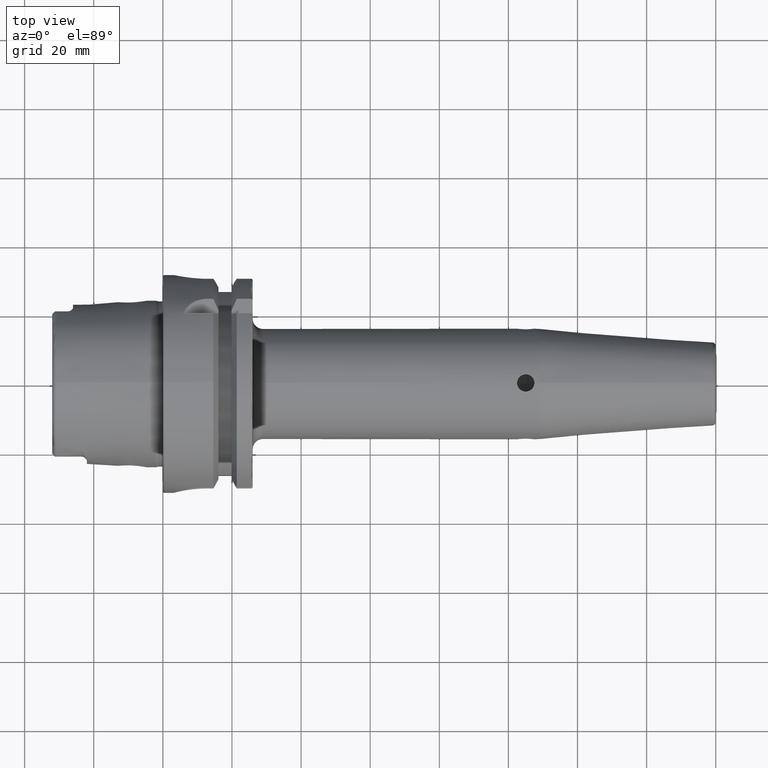
[diagram: clean part render]
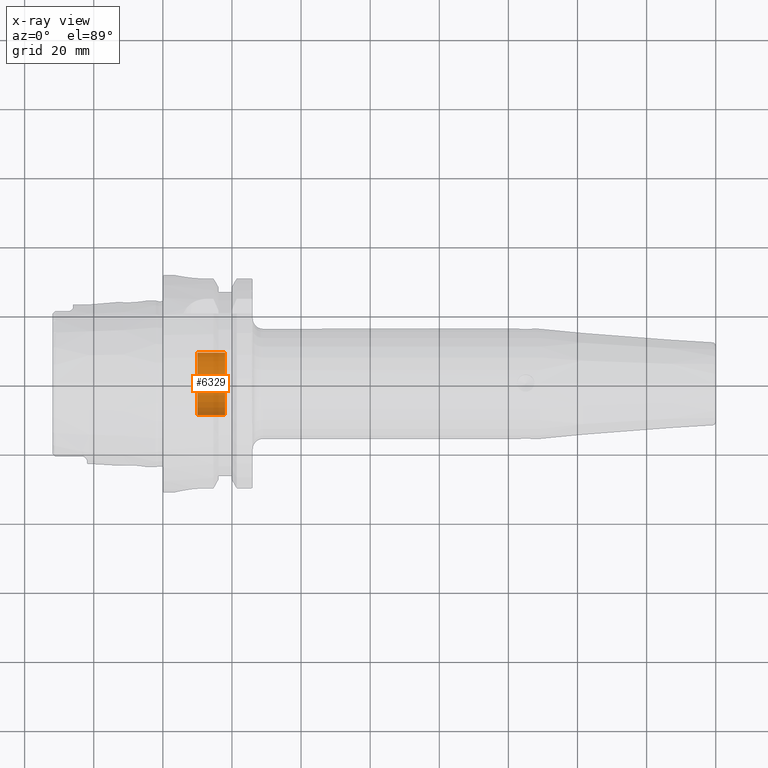
[diagram: x-ray — body ghosted, one internal face saturated and labeled with its STEP entity id]
A machine part, top view, then the same camera in x-ray: the body is ghosted and one INTERNAL B-rep face — a face not visible from any outside direction — is saturated and labeled: STEP entity #6329.
In plain terms, the highlighted cylindrical surface (edge-blend (fillet) strip) has radius 9 mm, axis along (-1, 0, 0).
Its self-contained STEP definition (entity closure, byte-faithful):
#6264=CARTESIAN_POINT('',(1.E1,0.E0,0.E0));
#6265=DIRECTION('',(1.E0,0.E0,0.E0));
#6266=DIRECTION('',(0.E0,-1.E0,0.E0));
#6267=AXIS2_PLACEMENT_3D('',#6264,#6265,#6266);
#6274=DIRECTION('',(1.E0,0.E0,0.E0));
#6275=VECTOR('',#6274,8.E0);
#6276=CARTESIAN_POINT('',(1.E1,-9.E0,0.E0));
#6277=LINE('',#6276,#6275);
#6278=DIRECTION('',(1.E0,0.E0,0.E0));
#6279=VECTOR('',#6278,8.E0);
#6280=CARTESIAN_POINT('',(1.E1,9.E0,0.E0));
#6281=LINE('',#6280,#6279);
#6287=CARTESIAN_POINT('',(1.8E1,0.E0,0.E0));
#6288=DIRECTION('',(-1.E0,0.E0,0.E0));
#6289=DIRECTION('',(0.E0,1.E0,0.E0));
#6290=AXIS2_PLACEMENT_3D('',#6287,#6288,#6289);
#6302=CARTESIAN_POINT('',(1.8E1,9.E0,0.E0));
#6303=CARTESIAN_POINT('',(1.8E1,-9.E0,0.E0));
#6304=VERTEX_POINT('',#6302);
#6305=VERTEX_POINT('',#6303);
#6306=CARTESIAN_POINT('',(1.E1,9.E0,0.E0));
#6307=CARTESIAN_POINT('',(1.E1,-9.E0,0.E0));
#6308=VERTEX_POINT('',#6306);
#6309=VERTEX_POINT('',#6307);
#6314=CARTESIAN_POINT('',(2.376268102482E1,0.E0,0.E0));
#6315=DIRECTION('',(-1.E0,0.E0,0.E0));
#6316=DIRECTION('',(0.E0,1.E0,0.E0));
#6317=AXIS2_PLACEMENT_3D('',#6314,#6315,#6316);
#6318=CYLINDRICAL_SURFACE('',#6317,9.E0);
#6320=ORIENTED_EDGE('',*,*,#6319,.T.);
#6322=ORIENTED_EDGE('',*,*,#6321,.T.);
#6324=ORIENTED_EDGE('',*,*,#6323,.T.);
#6326=ORIENTED_EDGE('',*,*,#6325,.F.);
#6327=EDGE_LOOP('',(#6320,#6322,#6324,#6326));
#6328=FACE_OUTER_BOUND('',#6327,.F.);
#6329=ADVANCED_FACE('',(#6328),#6318,.F.);
#6268=CIRCLE('',#6267,9.E0);
#6291=CIRCLE('',#6290,9.E0);
#6319=EDGE_CURVE('',#6309,#6308,#6268,.T.);
#6321=EDGE_CURVE('',#6308,#6304,#6281,.T.);
#6323=EDGE_CURVE('',#6304,#6305,#6291,.T.);
#6325=EDGE_CURVE('',#6309,#6305,#6277,.T.);